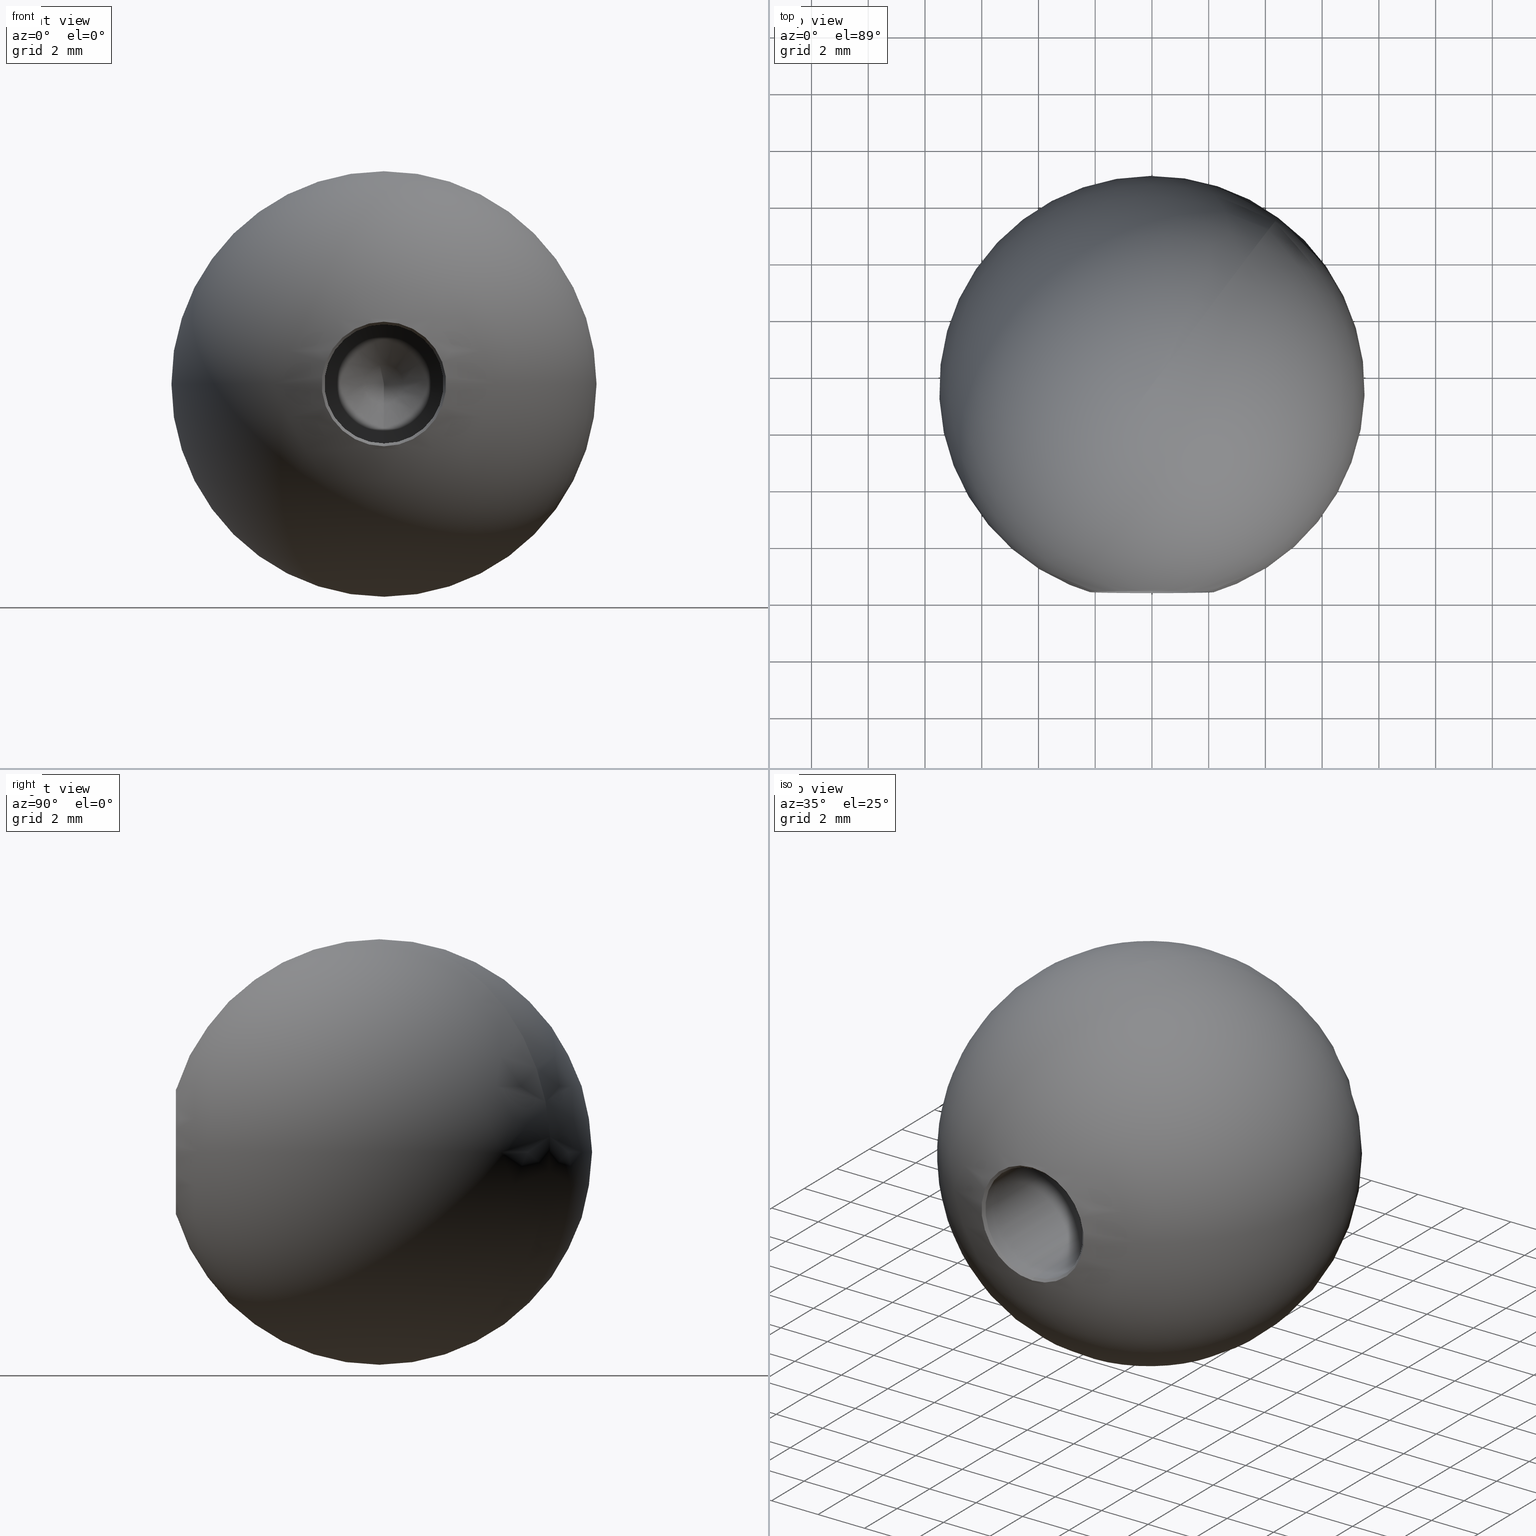
[diagram: canonical four-view strip — front | top / right | iso, engineering-drawing reading convention]
A machine part, canonical four-view strip (front | top / right | iso — engineering-drawing reading convention). The complete STEP part file that produces these views, byte-faithful:
ISO-10303-21;
HEADER;
FILE_DESCRIPTION (( 'STEP AP203' ),
    '1' );
FILE_NAME ('51015-240.step',
    '2023-09-08T07:10:47',
    ( '' ),
    ( '' ),
    'SwSTEP 2.0',
    'SolidWorks 2018',
    '' );
FILE_SCHEMA (( 'CONFIG_CONTROL_DESIGN' ));
ENDSEC;

DATA;
#1 = PERSON_AND_ORGANIZATION ( #107, #14 ) ;
#2 = APPROVAL ( #85, 'UNSPECIFIED' ) ;
#3 = DATE_AND_TIME ( #123, #139 ) ;
#4 = CARTESIAN_POINT ( 'NONE',  ( 0.000000000000000000, 0.4250000000000000444, 0.000000000000000000 ) ) ;
#5 = CARTESIAN_POINT ( 'NONE',  ( 0.000000000000000000, 12.00000000000000000, 0.000000000000000000 ) ) ;
#6 = CC_DESIGN_PERSON_AND_ORGANIZATION_ASSIGNMENT ( #89, #94, ( #104 ) ) ;
#7 = FACE_OUTER_BOUND ( 'NONE', #91, .T. ) ;
#8 = AXIS2_PLACEMENT_3D ( 'NONE', #44, #78, #73 ) ;
#9 = APPLICATION_CONTEXT ( 'configuration controlled 3d designs of mechanical parts and assemblies' ) ;
#10 =( LENGTH_UNIT ( ) NAMED_UNIT ( * ) SI_UNIT ( .MILLI., .METRE. ) );
#11 = AXIS2_PLACEMENT_3D ( 'NONE', #106, #110, #97 ) ;
#12 = PERSON_AND_ORGANIZATION_ROLE ( 'design_supplier' ) ;
#13 =( NAMED_UNIT ( * ) SI_UNIT ( $, .STERADIAN. ) SOLID_ANGLE_UNIT ( ) );
#14 = ORGANIZATION ( 'UNSPECIFIED', 'UNSPECIFIED', '' ) ;
#15 = CC_DESIGN_APPROVAL ( #2, ( #121 ) ) ;
#16 = EDGE_CURVE ( 'NONE', #61, #61, #150, .T. ) ;
#17 = LOCAL_TIME ( 9, 10, 47.00000000000000000, #63 ) ;
#18 = CIRCLE ( 'NONE', #42, 2.196231818753075604 ) ;
#19 = AXIS2_PLACEMENT_3D ( 'NONE', #23, #62, #47 ) ;
#20 = COORDINATED_UNIVERSAL_TIME_OFFSET ( 1, 0, .AHEAD. ) ;
#21 = ORIENTED_EDGE ( 'NONE', *, *, #50, .F. ) ;
#22 = ORIENTED_EDGE ( 'NONE', *, *, #29, .T. ) ;
#23 = CARTESIAN_POINT ( 'NONE',  ( -1.887411345499492888E-31, 7.500000000000000000, 0.000000000000000000 ) ) ;
#24 = VERTEX_POINT ( 'NONE', #140 ) ;
#25 = APPLICATION_PROTOCOL_DEFINITION ( 'international standard', 'config_control_design', 1994, #64 ) ;
#26 = APPROVAL_STATUS ( 'not_yet_approved' ) ;
#27 = PERSON_AND_ORGANIZATION ( #107, #14 ) ;
#28 = MECHANICAL_CONTEXT ( 'NONE', #64, 'mechanical' ) ;
#29 = EDGE_CURVE ( 'NONE', #77, #77, #39, .T. ) ;
#30 = CC_DESIGN_APPROVAL ( #108, ( #104 ) ) ;
#31 = ADVANCED_BREP_SHAPE_REPRESENTATION ( '51015-240', ( #145, #11 ), #74 ) ;
#32 = FACE_OUTER_BOUND ( 'NONE', #112, .T. ) ;
#33 = DATE_TIME_ROLE ( 'classification_date' ) ;
#34 = APPROVAL_ROLE ( '' ) ;
#35 = SECURITY_CLASSIFICATION_LEVEL ( 'unclassified' ) ;
#36 = APPROVAL_ROLE ( '' ) ;
#37 = SPHERICAL_SURFACE ( 'NONE', #19, 7.500000000000000000 ) ;
#38 = APPROVAL_DATE_TIME ( #70, #155 ) ;
#39 = CIRCLE ( 'NONE', #146, 2.099999999999998757 ) ;
#40 = APPROVAL_DATE_TIME ( #3, #108 ) ;
#41 = UNCERTAINTY_MEASURE_WITH_UNIT (LENGTH_MEASURE( 1.000000000000000082E-05 ), #10, 'distance_accuracy_value', 'NONE');
#42 = AXIS2_PLACEMENT_3D ( 'NONE', #72, #118, #131 ) ;
#43 = DIRECTION ( 'NONE',  ( -0.000000000000000000, -1.000000000000000000, -0.000000000000000000 ) ) ;
#44 = CARTESIAN_POINT ( 'NONE',  ( 0.000000000000000000, 12.00000000000000000, 0.000000000000000000 ) ) ;
#45 = APPROVAL_ROLE ( '' ) ;
#46 = CC_DESIGN_PERSON_AND_ORGANIZATION_ASSIGNMENT ( #27, #75, ( #137 ) ) ;
#47 = DIRECTION ( 'NONE',  ( -1.000000000000000000, -2.312964634635742957E-16, 0.000000000000000000 ) ) ;
#48 = PERSON_AND_ORGANIZATION ( #107, #14 ) ;
#49 = CLOSED_SHELL ( 'NONE', ( #87, #69, #58, #68 ) ) ;
#50 = EDGE_CURVE ( 'NONE', #24, #24, #18, .T. ) ;
#51 = ORIENTED_EDGE ( 'NONE', *, *, #50, .T. ) ;
#52 = AXIS2_PLACEMENT_3D ( 'NONE', #105, #43, #149 ) ;
#53 = APPROVAL_PERSON_ORGANIZATION ( #125, #155, #34 ) ;
#54 = CC_DESIGN_DATE_AND_TIME_ASSIGNMENT ( #96, #109, ( #104 ) ) ;
#55 = DIRECTION ( 'NONE',  ( 0.000000000000000000, 0.000000000000000000, -1.000000000000000000 ) ) ;
#56 = AXIS2_PLACEMENT_3D ( 'NONE', #116, #133, #60 ) ;
#57 = EDGE_LOOP ( 'NONE', ( #141 ) ) ;
#58 = ADVANCED_FACE ( 'NONE', ( #135, #7 ), #88, .F. ) ;
#59 = PERSON_AND_ORGANIZATION ( #107, #14 ) ;
#60 = DIRECTION ( 'NONE',  ( 0.000000000000000000, 0.000000000000000000, -1.000000000000000000 ) ) ;
#61 = VERTEX_POINT ( 'NONE', #93 ) ;
#62 = DIRECTION ( 'NONE',  ( -0.000000000000000000, 0.000000000000000000, -1.000000000000000000 ) ) ;
#63 = COORDINATED_UNIVERSAL_TIME_OFFSET ( 1, 0, .AHEAD. ) ;
#64 = APPLICATION_CONTEXT ( 'configuration controlled 3d designs of mechanical parts and assemblies' ) ;
#65 = PERSON_AND_ORGANIZATION_ROLE ( 'classification_officer' ) ;
#66 = EDGE_LOOP ( 'NONE', ( #51 ) ) ;
#67 = DATE_AND_TIME ( #111, #147 ) ;
#68 = ADVANCED_FACE ( 'NONE', ( #130, #98 ), #127, .F. ) ;
#69 = ADVANCED_FACE ( 'NONE', ( #122 ), #86, .F. ) ;
#70 = DATE_AND_TIME ( #100, #134 ) ;
#71 = CC_DESIGN_SECURITY_CLASSIFICATION ( #121, ( #113 ) ) ;
#72 = CARTESIAN_POINT ( 'NONE',  ( -1.887411345499492888E-31, 0.3287681812469229747, 0.000000000000000000 ) ) ;
#73 = DIRECTION ( 'NONE',  ( 0.000000000000000000, 0.000000000000000000, -1.000000000000000000 ) ) ;
#74 =( GEOMETRIC_REPRESENTATION_CONTEXT ( 3 ) GLOBAL_UNCERTAINTY_ASSIGNED_CONTEXT ( ( #41 ) ) GLOBAL_UNIT_ASSIGNED_CONTEXT ( ( #10, #136, #13 ) ) REPRESENTATION_CONTEXT ( 'NONE', 'WORKASPACE' ) );
#75 = PERSON_AND_ORGANIZATION_ROLE ( 'design_owner' ) ;
#76 = EDGE_LOOP ( 'NONE', ( #101 ) ) ;
#77 = VERTEX_POINT ( 'NONE', #120 ) ;
#78 = DIRECTION ( 'NONE',  ( -0.000000000000000000, -1.000000000000000000, -0.000000000000000000 ) ) ;
#79 = DIRECTION ( 'NONE',  ( -0.000000000000000000, -1.000000000000000000, -0.000000000000000000 ) ) ;
#80 = PERSON_AND_ORGANIZATION ( #107, #14 ) ;
#81 = COORDINATED_UNIVERSAL_TIME_OFFSET ( 1, 0, .AHEAD. ) ;
#82 = PRODUCT_DEFINITION_SHAPE ( 'NONE', 'NONE',  #104 ) ;
#83 = DATE_AND_TIME ( #152, #142 ) ;
#84 = APPLICATION_PROTOCOL_DEFINITION ( 'international standard', 'config_control_design', 1994, #9 ) ;
#85 = APPROVAL_STATUS ( 'not_yet_approved' ) ;
#86 = CONICAL_SURFACE ( 'NONE', #92, 2.099999999999997424, 1.029744258676653423 ) ;
#87 = ADVANCED_FACE ( 'NONE', ( #32 ), #37, .T. ) ;
#88 = CYLINDRICAL_SURFACE ( 'NONE', #56, 2.099999999999997868 ) ;
#89 = PERSON_AND_ORGANIZATION ( #107, #14 ) ;
#90 = DIRECTION ( 'NONE',  ( -0.000000000000000000, -1.000000000000000000, -0.000000000000000000 ) ) ;
#91 = EDGE_LOOP ( 'NONE', ( #22 ) ) ;
#92 = AXIS2_PLACEMENT_3D ( 'NONE', #5, #79, #55 ) ;
#93 = CARTESIAN_POINT ( 'NONE',  ( 0.000000000000000000, 12.00000000000000000, -2.099999999999997424 ) ) ;
#94 = PERSON_AND_ORGANIZATION_ROLE ( 'creator' ) ;
#95 = PERSON_AND_ORGANIZATION_ROLE ( 'creator' ) ;
#96 = DATE_AND_TIME ( #128, #17 ) ;
#97 = DIRECTION ( 'NONE',  ( 1.000000000000000000, 0.000000000000000000, 0.000000000000000000 ) ) ;
#98 = FACE_BOUND ( 'NONE', #154, .T. ) ;
#99 = SHAPE_DEFINITION_REPRESENTATION ( #82, #31 ) ;
#100 = CALENDAR_DATE ( 2023, 8, 9 ) ;
#101 = ORIENTED_EDGE ( 'NONE', *, *, #16, .F. ) ;
#102 = CC_DESIGN_APPROVAL ( #155, ( #113 ) ) ;
#103 = COORDINATED_UNIVERSAL_TIME_OFFSET ( 1, 0, .AHEAD. ) ;
#104 = PRODUCT_DEFINITION ( 'UNKNOWN', '', #113, #117 ) ;
#105 = CARTESIAN_POINT ( 'NONE',  ( 0.000000000000000000, 0.000000000000000000, 0.000000000000000000 ) ) ;
#106 = CARTESIAN_POINT ( 'NONE',  ( 0.000000000000000000, 0.000000000000000000, 0.000000000000000000 ) ) ;
#107 = PERSON ( 'UNSPECIFIED', 'UNSPECIFIED', 'UNSPECIFIED', ('UNSPECIFIED'), ('UNSPECIFIED'), ('UNSPECIFIED') ) ;
#108 = APPROVAL ( #138, 'UNSPECIFIED' ) ;
#109 = DATE_TIME_ROLE ( 'creation_date' ) ;
#110 = DIRECTION ( 'NONE',  ( 0.000000000000000000, 0.000000000000000000, 1.000000000000000000 ) ) ;
#111 = CALENDAR_DATE ( 2023, 8, 9 ) ;
#112 = EDGE_LOOP ( 'NONE', ( #21 ) ) ;
#113 = PRODUCT_DEFINITION_FORMATION_WITH_SPECIFIED_SOURCE ( 'ANY', '', #137, .NOT_KNOWN. ) ;
#114 = PERSON_AND_ORGANIZATION ( #107, #14 ) ;
#115 = CC_DESIGN_PERSON_AND_ORGANIZATION_ASSIGNMENT ( #114, #12, ( #113 ) ) ;
#116 = CARTESIAN_POINT ( 'NONE',  ( 0.000000000000000000, 0.000000000000000000, 0.000000000000000000 ) ) ;
#117 = DESIGN_CONTEXT ( 'detailed design', #9, 'design' ) ;
#118 = DIRECTION ( 'NONE',  ( -0.000000000000000000, -1.000000000000000000, -0.000000000000000000 ) ) ;
#119 = CC_DESIGN_PERSON_AND_ORGANIZATION_ASSIGNMENT ( #59, #95, ( #113 ) ) ;
#120 = CARTESIAN_POINT ( 'NONE',  ( 0.000000000000000000, 0.4250000000000000444, -2.099999999999998757 ) ) ;
#121 = SECURITY_CLASSIFICATION ( '', '', #35 ) ;
#122 = FACE_OUTER_BOUND ( 'NONE', #57, .T. ) ;
#123 = CALENDAR_DATE ( 2023, 8, 9 ) ;
#124 = PRODUCT_RELATED_PRODUCT_CATEGORY ( 'detail', '', ( #137 ) ) ;
#125 = PERSON_AND_ORGANIZATION ( #107, #14 ) ;
#126 = COORDINATED_UNIVERSAL_TIME_OFFSET ( 1, 0, .AHEAD. ) ;
#127 = CONICAL_SURFACE ( 'NONE', #52, 2.524999999999999911, 0.7853981633974498333 ) ;
#128 = CALENDAR_DATE ( 2023, 8, 9 ) ;
#129 = DIRECTION ( 'NONE',  ( 0.000000000000000000, 0.000000000000000000, -1.000000000000000000 ) ) ;
#130 = FACE_OUTER_BOUND ( 'NONE', #66, .T. ) ;
#131 = DIRECTION ( 'NONE',  ( 0.000000000000000000, 0.000000000000000000, 1.000000000000000000 ) ) ;
#132 = APPROVAL_DATE_TIME ( #67, #2 ) ;
#133 = DIRECTION ( 'NONE',  ( -0.000000000000000000, -1.000000000000000000, -0.000000000000000000 ) ) ;
#134 = LOCAL_TIME ( 9, 10, 47.00000000000000000, #20 ) ;
#135 = FACE_OUTER_BOUND ( 'NONE', #76, .T. ) ;
#136 =( NAMED_UNIT ( * ) PLANE_ANGLE_UNIT ( ) SI_UNIT ( $, .RADIAN. ) );
#137 = PRODUCT ( '51015-240', '51015-240', '', ( #28 ) ) ;
#138 = APPROVAL_STATUS ( 'not_yet_approved' ) ;
#139 = LOCAL_TIME ( 9, 10, 47.00000000000000000, #103 ) ;
#140 = CARTESIAN_POINT ( 'NONE',  ( -1.887411345499492888E-31, 0.3287681812469229747, 2.196231818753075604 ) ) ;
#141 = ORIENTED_EDGE ( 'NONE', *, *, #16, .T. ) ;
#142 = LOCAL_TIME ( 9, 10, 47.00000000000000000, #126 ) ;
#143 = CC_DESIGN_PERSON_AND_ORGANIZATION_ASSIGNMENT ( #80, #65, ( #121 ) ) ;
#144 = APPROVAL_PERSON_ORGANIZATION ( #48, #108, #45 ) ;
#145 = MANIFOLD_SOLID_BREP ( 'M5 Gewindebohrung2', #49 ) ;
#146 = AXIS2_PLACEMENT_3D ( 'NONE', #4, #90, #129 ) ;
#147 = LOCAL_TIME ( 9, 10, 47.00000000000000000, #81 ) ;
#148 = ORIENTED_EDGE ( 'NONE', *, *, #29, .F. ) ;
#149 = DIRECTION ( 'NONE',  ( 0.000000000000000000, 0.000000000000000000, -1.000000000000000000 ) ) ;
#150 = CIRCLE ( 'NONE', #8, 2.099999999999997424 ) ;
#151 = CC_DESIGN_DATE_AND_TIME_ASSIGNMENT ( #83, #33, ( #121 ) ) ;
#152 = CALENDAR_DATE ( 2023, 8, 9 ) ;
#153 = APPROVAL_PERSON_ORGANIZATION ( #1, #2, #36 ) ;
#154 = EDGE_LOOP ( 'NONE', ( #148 ) ) ;
#155 = APPROVAL ( #26, 'UNSPECIFIED' ) ;
ENDSEC;
END-ISO-10303-21;
